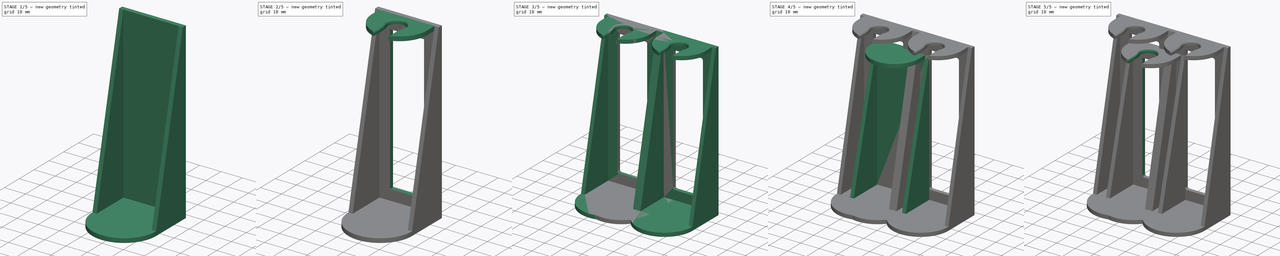
[diagram: build sequence overview — one tinted view per stage of 5, left to right]
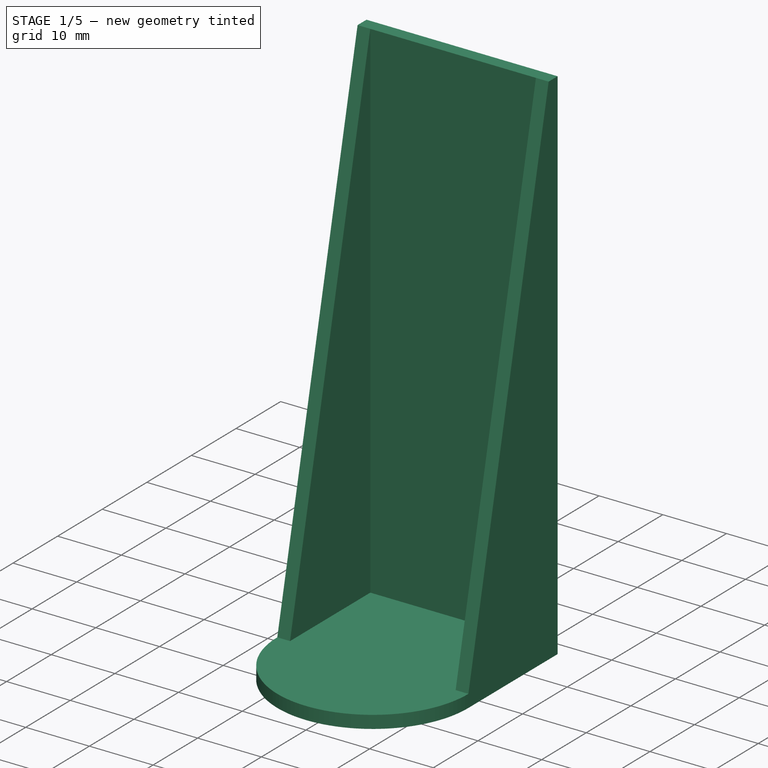
[diagram: stage 1 of 5 — iso view after this stage's code; geometry added in this stage tinted green]
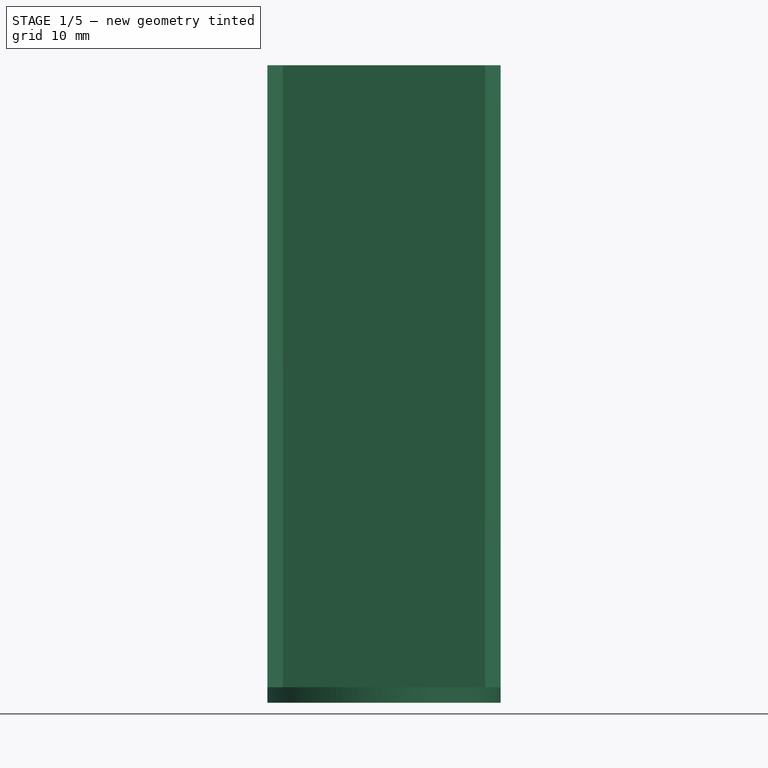
[diagram: stage 1 of 5 — front view after this stage's code; geometry added in this stage tinted green]
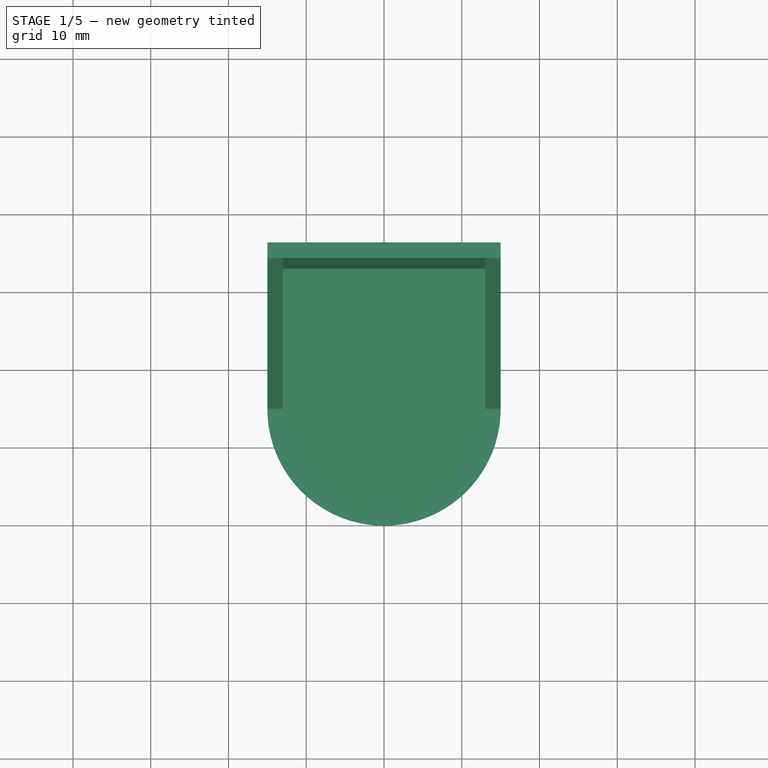
[diagram: stage 1 of 5 — top view after this stage's code; geometry added in this stage tinted green]
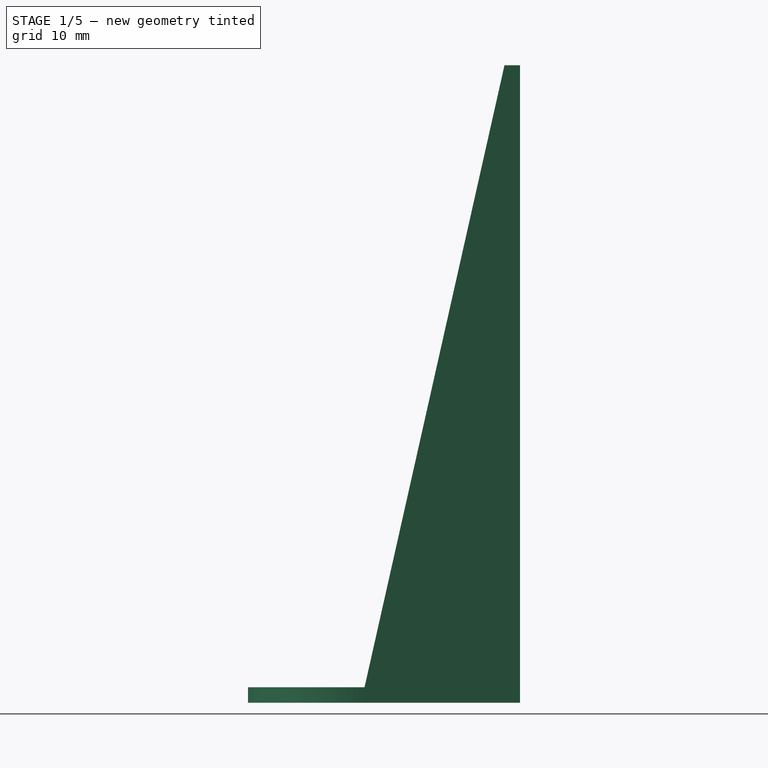
[diagram: stage 1 of 5 — right view after this stage's code; geometry added in this stage tinted green]
FCSTD DOCUMENT  (FreeCAD 0.19R22756 (Git))
Label: toothbrush-head-holder
License: All rights reserved
LicenseURL: http://en.wikipedia.org/wiki/All_rights_reserved
objects: Sketcher::SketchObject×12, PartDesign::Pad×8, PartDesign::Pocket×4, PartDesign::Fillet×4, PartDesign::Mirrored×2, PartDesign::Body×2, Part::FeaturePython×1
note: 48 computed .brp shape members not serialized (recipe doc carries the construction recipe); baked Part::Feature solids carry a one-line shape summary decoded from their .brp

FEATURE [PartDesign::Body] Body  label="Sonicare-holder-single"
  Group = -> [Sketch,Pad,Sketch001,Pad001,Sketch002,Pad002,Mirrored,Sketch003,Pad003,Sketch004,Pocket,Sketch005,Pocket001,Fillet,Fillet001]
  Origin = -> Origin
  Tip = -> Fillet001
FEATURE [Sketcher::SketchObject] Sketch006
  MapMode = 5
  Support = -> [XY_Plane001]
  expr: Constraints[6] = Constraints[5] / 2
  expr: Constraints[7] = Constraints[6]
  expr: Constraints[12] = Constraints[5] / 1.5
  sketch-geometry (4):
    g0: LineSegment StartX=-15 StartY=-5 StartZ=0 EndX=-15 EndY=15 EndZ=0
    g1: LineSegment StartX=-15 StartY=15 StartZ=0 EndX=15 EndY=15 EndZ=0
    g2: LineSegment StartX=15 StartY=15 StartZ=0 EndX=15 EndY=-5 EndZ=0
    g3: ArcOfCircle CenterX=-8e-16 CenterY=-5 CenterZ=0 NormalX=0 NormalY=0 NormalZ=1 AngleXU=0 Radius=15 StartAngle=3.14159 EndAngle=6.28319
  constraints (13):
    c: Vertical(g0)
    c: Coincident(g1,g0)
    c: Horizontal(g1)
    c: Coincident(g2,g1)
    c: Vertical(g2)
    c: Distance(g1) = 30
    c: Distance(g-1,g0) = 15
    c: Distance(g-1,g1) = 15
    c: Horizontal(g2,g0)
    c: Coincident(g3,g0)
    c: Coincident(g3,g2)
    c: Horizontal(g3,g2)
    c: Distance(g0,g0) = 20
FEATURE [PartDesign::Pad] Pad005
  Direction = (1,1,1)
  Length = 2
  Length2 = 100
  Profile = -> Sketch006
  Type = 0
FEATURE [Sketcher::SketchObject] Sketch007
  ExternalGeometry = -> [Pad005]
  MapMode = 5
  Placement = pos=(0,15,0) rot=(0,0.707107,0.707107;3.14159rad)
  Support = -> [Pad005]
  sketch-geometry (4):
    g0: LineSegment StartX=-15 StartY=2 StartZ=0 EndX=15 EndY=2 EndZ=0
    g1: LineSegment StartX=15 StartY=2 StartZ=0 EndX=15 EndY=82 EndZ=0
    g2: LineSegment StartX=15 StartY=82 StartZ=0 EndX=-15 EndY=82 EndZ=0
    g3: LineSegment StartX=-15 StartY=82 StartZ=0 EndX=-15 EndY=2 EndZ=0
  constraints (10):
    c: Coincident(g0,g1)
    c: Coincident(g1,g2)
    c: Coincident(g2,g3)
    c: Coincident(g3,g0)
    c: Horizontal(g2)
    c: Vertical(g1)
    c: Vertical(g3)
    c: Coincident(g0,g-3)
    c: Coincident(g-3,g0)
    c: Distance(g1) = 80
FEATURE [PartDesign::Pad] Pad006
  BaseFeature = -> Pad005
  Direction = (1,1,1)
  Length = 2
  Length2 = 100
  Profile = -> Sketch007
  Reversed = true
  Type = 0
FEATURE [Sketcher::SketchObject] Sketch008
  ExternalGeometry = -> [Pad006]
  MapMode = 5
  Placement = pos=(15,0,0) rot=(0.57735,0.57735,0.57735;2.0944rad)
  Support = -> [Pad006]
  sketch-geometry (3):
    g0: LineSegment StartX=13 StartY=82 StartZ=0 EndX=13 EndY=2 EndZ=0
    g1: LineSegment StartX=13 StartY=2 StartZ=0 EndX=-5 EndY=2 EndZ=0
    g2: LineSegment StartX=-5 StartY=2 StartZ=0 EndX=13 EndY=82 EndZ=0
  constraints (6):
    c: Coincident(g0,g-4)
    c: Coincident(g0,g-4)
    c: Coincident(g1,g0)
    c: Coincident(g1,g-3)
    c: Coincident(g2,g1)
    c: Coincident(g2,g0)
FEATURE [PartDesign::Pad] Pad007
  BaseFeature = -> Pad006
  Direction = (1,1,1)
  Length = 2
  Length2 = 100
  Profile = -> Sketch008
  Reversed = true
  Type = 0
FEATURE [PartDesign::Mirrored] Mirrored001
  BaseFeature = -> Pad007
  MirrorPlane = -> YZ_Plane001
  Originals = -> [Pad007]
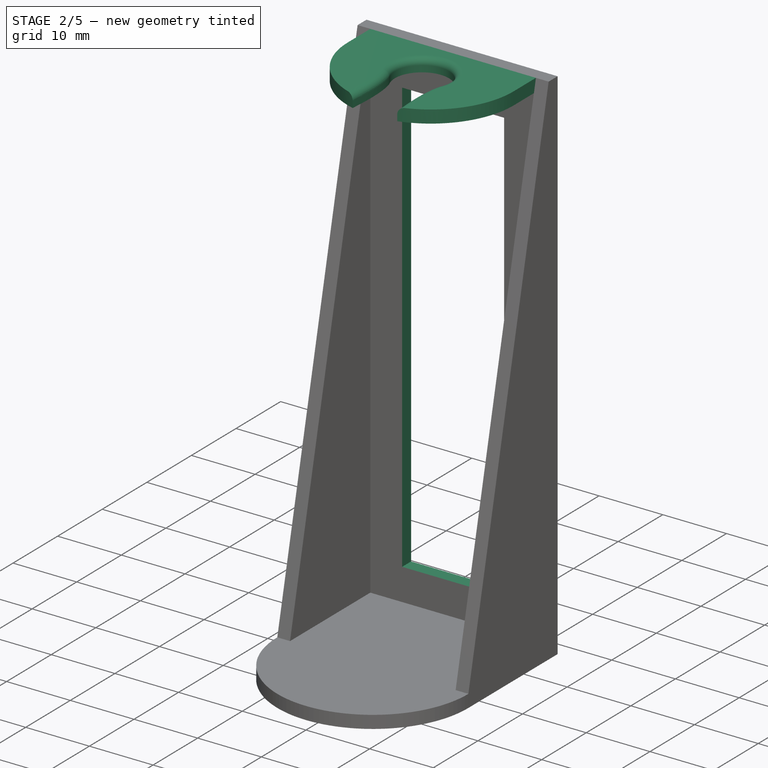
[diagram: stage 2 of 5 — iso view after this stage's code; geometry added in this stage tinted green]
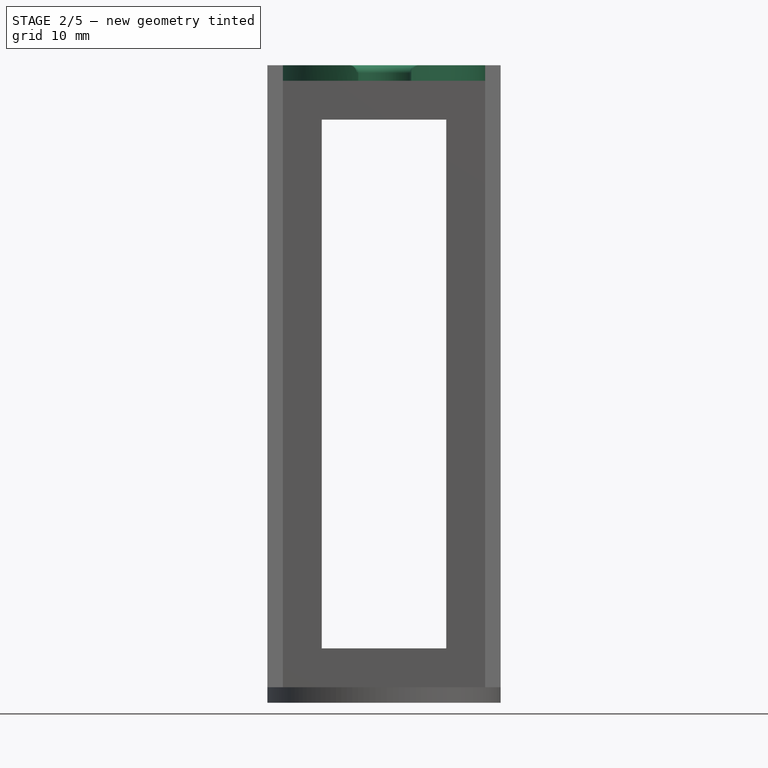
[diagram: stage 2 of 5 — front view after this stage's code; geometry added in this stage tinted green]
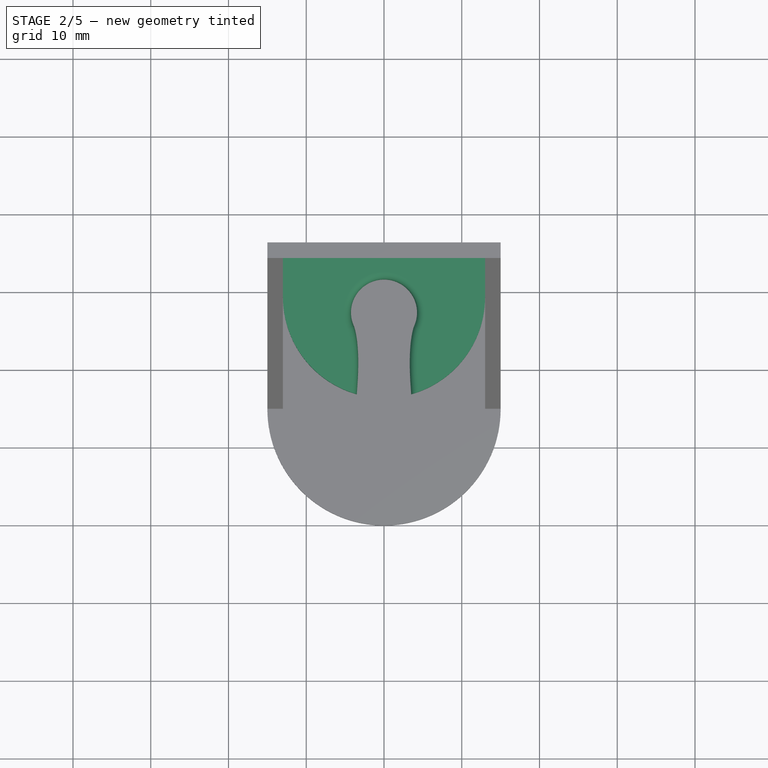
[diagram: stage 2 of 5 — top view after this stage's code; geometry added in this stage tinted green]
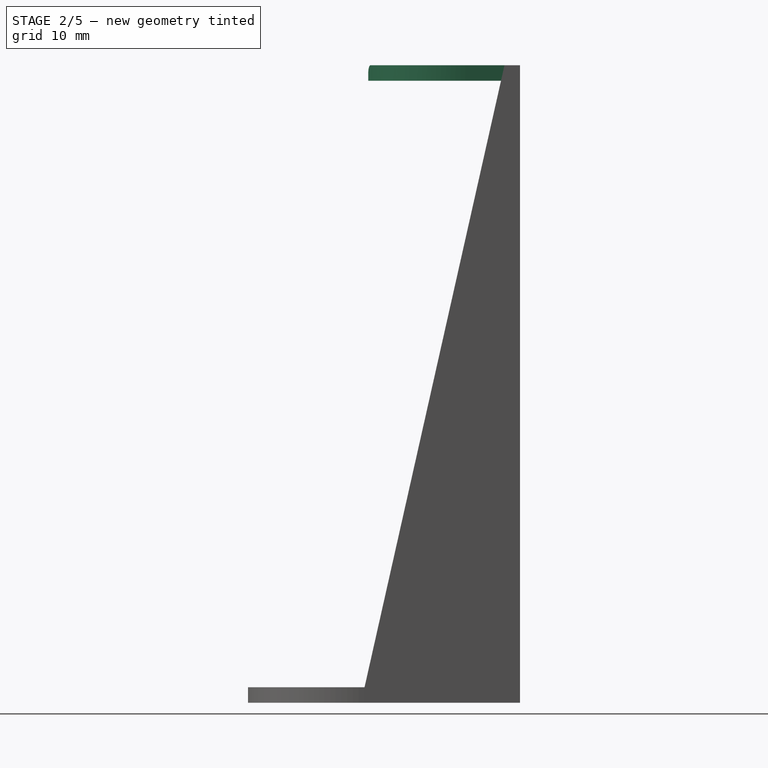
[diagram: stage 2 of 5 — right view after this stage's code; geometry added in this stage tinted green]
FEATURE [Sketcher::SketchObject] Sketch010
  ExternalGeometry = -> [Mirrored001]
  MapMode = 5
  Placement = pos=(0,1.82e-14,82) rot=(0,0,1;0rad)
  Support = -> [Mirrored001]
  sketch-geometry (4):
    g0: LineSegment StartX=-13 StartY=13 StartZ=0 EndX=13 EndY=13 EndZ=0
    g1: LineSegment StartX=-13 StartY=13 StartZ=0 EndX=-13 EndY=8 EndZ=0
    g2: LineSegment StartX=13 StartY=13 StartZ=0 EndX=13 EndY=8 EndZ=0
    g3: ArcOfCircle CenterX=-3.1e-15 CenterY=8 CenterZ=0 NormalX=0 NormalY=0 NormalZ=1 AngleXU=0 Radius=13 StartAngle=3.14159 EndAngle=6.28319
  constraints (10):
    c: Coincident(g0,g-3)
    c: Coincident(g0,g-4)
    c: Coincident(g1,g0)
    c: Coincident(g2,g0)
    c: Horizontal(g1,g2)
    c: Parallel(g1,g-3)
    c: Parallel(g2,g-4)
    c: Distance(g1) = 5
    c: Coincident(g3,g2)
    c: Tangent(g3,g1) = -1.5708
FEATURE [PartDesign::Pad] Pad004
  BaseFeature = -> Mirrored001
  Direction = (1,1,1)
  Length = 2
  Length2 = 100
  Profile = -> Sketch010
  Reversed = true
  Type = 0
FEATURE [Sketcher::SketchObject] Sketch009
  ExternalGeometry = -> [Pad004]
  MapMode = 5
  Placement = pos=(0,0,82) rot=(0,0,1;0rad)
  Support = -> [Pad004]
  expr: Constraints[22] = Constraints[15]
  sketch-geometry (10):
    g0: LineSegment [constr] StartX=0 StartY=0 StartZ=0 EndX=0 EndY=6 EndZ=0
    g1: ArcOfCircle CenterX=0 CenterY=6 CenterZ=0 NormalX=0 NormalY=0 NormalZ=1 AngleXU=0 Radius=4.25 StartAngle=5.83648 EndAngle=9.87149
    g2: Circle [constr] CenterX=-3.83296 CenterY=4.164 CenterZ=0 NormalX=0 NormalY=0 NormalZ=1 AngleXU=0 Radius=0.2
    g3: Circle [constr] CenterX=-3 CenterY=1.5 CenterZ=0 NormalX=0 NormalY=0 NormalZ=1 AngleXU=0 Radius=0.2
    g4: Circle [constr] CenterX=-3.5 CenterY=-4.51998 CenterZ=0 NormalX=0 NormalY=0 NormalZ=1 AngleXU=0 Radius=0.2
    g5: BSplineCurve PolesCount=3 KnotsCount=2 Degree=2 IsPeriodic=0
    g6: GeomPoint [constr] X=-3.83296 Y=4.164 Z=0
    g7: GeomPoint [constr] X=-3.5 Y=-4.51998 Z=0
    g8: BSplineCurve PolesCount=3 KnotsCount=2 Degree=2 IsPeriodic=0
    g9: ArcOfCircle CenterX=2.1e-15 CenterY=8 CenterZ=0 NormalX=0 NormalY=0 NormalZ=1 AngleXU=0 Radius=13 StartAngle=4.43979 EndAngle=4.98498
  constraints (25):
    c: Coincident(g0,g-1)
    c: PointOnObject(g0,g-2)
    c: Distance(g0) = 6
    c: Coincident(g1,g0)
    c: Horizontal(g1,g1)
    c: Radius(g1) = 4.25
    c: Coincident(g5,g1)
    c: Radius(g2) = 0.2
    c: Equal(g2,g3)
    c: Equal(g2,g4)
    c: InternalAlignment(g2,g5)
    c: InternalAlignment(g3,g5)
    c: InternalAlignment(g4,g5)
    c: InternalAlignment(g6,g5)
    c: InternalAlignment(g7,g5)
    c: Distance(g5,g0) = 3.5
    c: DistanceY(g-1,g1) = 4.164
    c: Distance(g3,g0) = 3
    c: DistanceY(g-1,g3) = 1.5
    c: PointOnObject(g5,g-3)
    c: Coincident(g9,g5)
    c: Coincident(g9,g8)
    c: DistanceX(g-2,g8) = 3.5
    c: Horizontal(g5,g8)
    c: Tangent(g9,g-3)
FEATURE [PartDesign::Pocket] Pocket003
  BaseFeature = -> Pad004
  Length = 0
  Length2 = 100
  Profile = -> Sketch009
  Type = 3
  UpToFace = -> Pad004 [Face21]
FEATURE [Sketcher::SketchObject] Sketch011
  ExternalGeometry = -> [Pocket003]
  MapMode = 5
  Placement = pos=(0,13,-2.9e-15) rot=(1,0,0;1.5708rad)
  Support = -> [Pocket003]
  expr: Constraints[9] = Constraints[8]
  expr: Constraints[10] = Constraints[8]
  expr: Constraints[11] = Constraints[8]
  sketch-geometry (4):
    g0: LineSegment StartX=-8 StartY=7 StartZ=0 EndX=8 EndY=7 EndZ=0
    g1: LineSegment StartX=8 StartY=7 StartZ=0 EndX=8 EndY=75 EndZ=0
    g2: LineSegment StartX=8 StartY=75 StartZ=0 EndX=-8 EndY=75 EndZ=0
    g3: LineSegment StartX=-8 StartY=75 StartZ=0 EndX=-8 EndY=7 EndZ=0
  constraints (12):
    c: Coincident(g0,g1)
    c: Coincident(g1,g2)
    c: Coincident(g2,g3)
    c: Coincident(g3,g0)
    c: Horizontal(g0)
    c: Horizontal(g2)
    c: Vertical(g1)
    c: Vertical(g3)
    c: Distance(g-3,g0) = 5
    c: Distance(g-8,g3) = 5
    c: Distance(g-6,g2) = 5
    c: Distance(g-6,g1) = 5
FEATURE [PartDesign::Pocket] Pocket002
  BaseFeature = -> Pocket003
  Length = 0
  Length2 = 100
  Profile = -> Sketch011
  Type = 3
  UpToFace = -> Pocket003 [Face9]
FEATURE [PartDesign::Fillet] Fillet003
  Base = -> Pocket002 [Edge57,Edge58,Edge59]
  BaseFeature = -> Pocket002
  Radius = 1
  SupportTransform = false
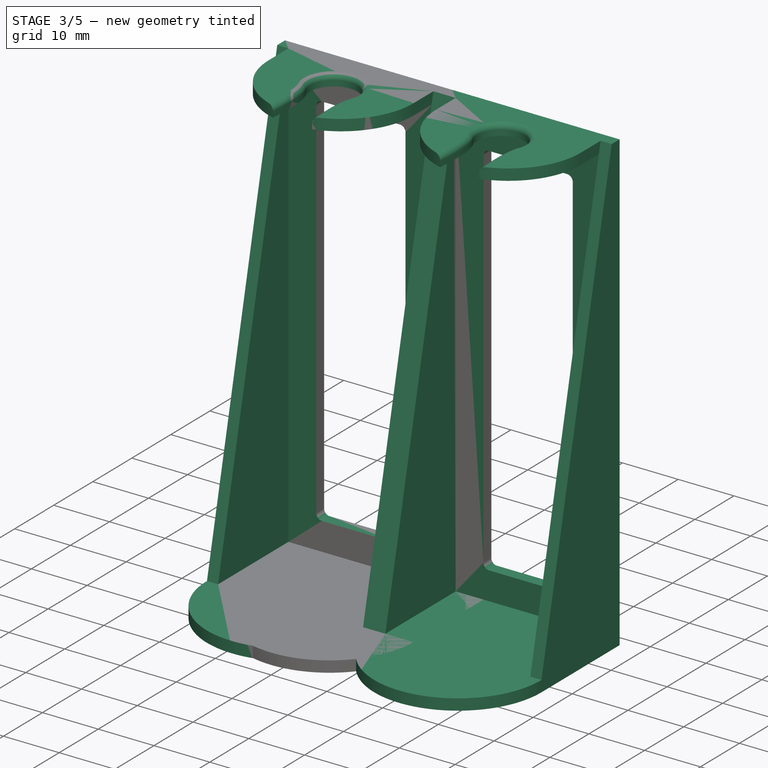
[diagram: stage 3 of 5 — iso view after this stage's code; geometry added in this stage tinted green]
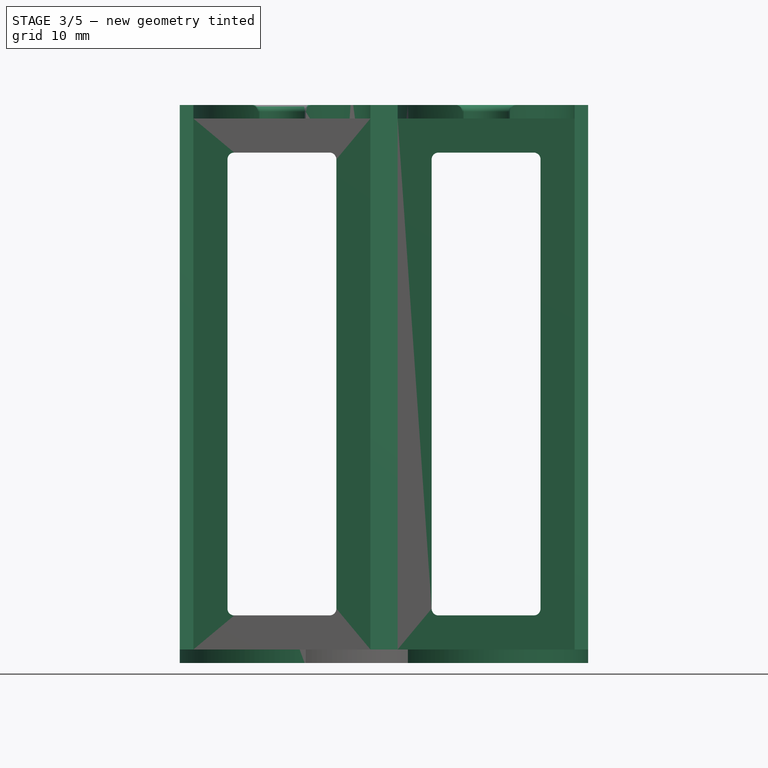
[diagram: stage 3 of 5 — front view after this stage's code; geometry added in this stage tinted green]
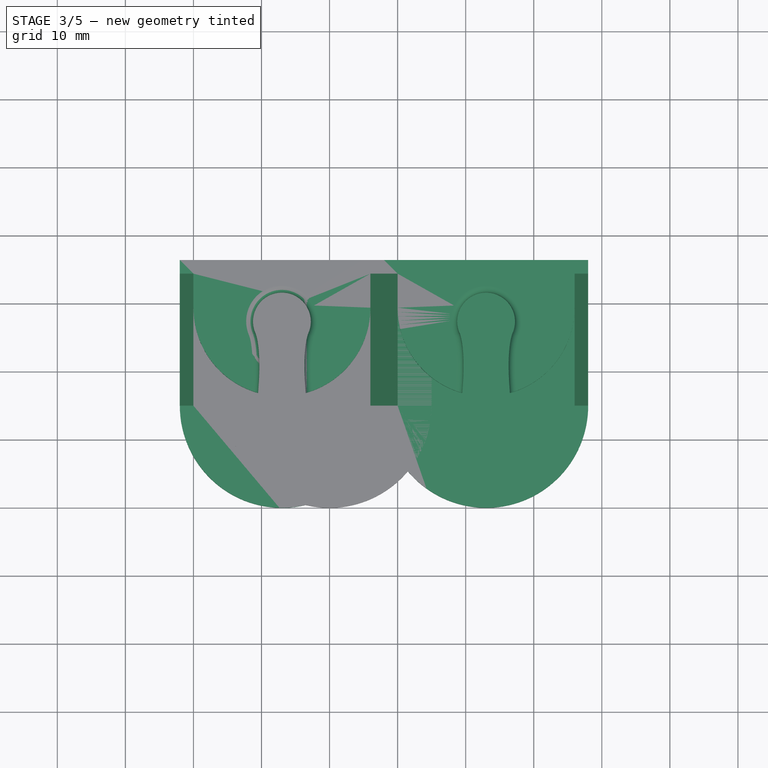
[diagram: stage 3 of 5 — top view after this stage's code; geometry added in this stage tinted green]
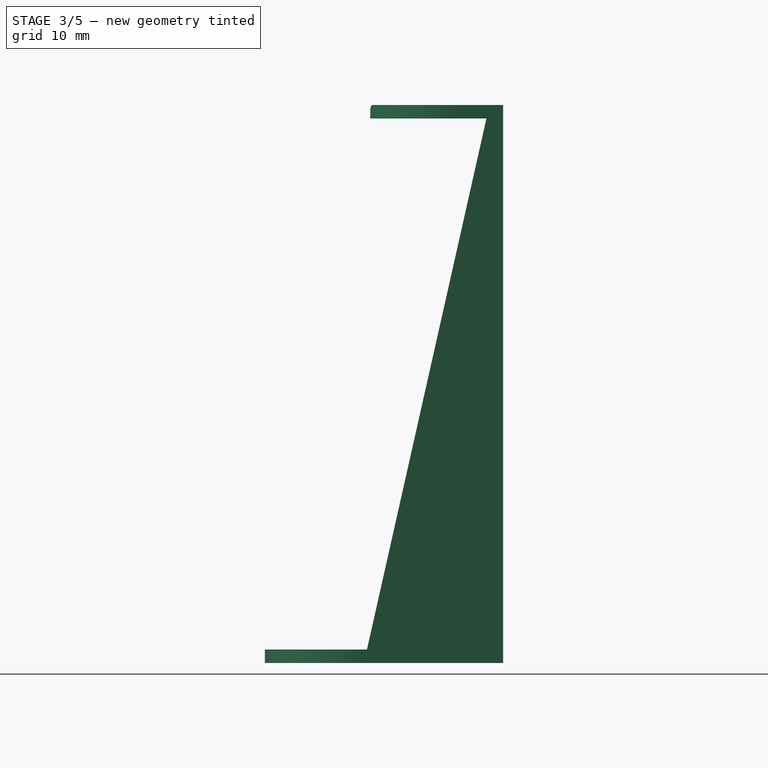
[diagram: stage 3 of 5 — right view after this stage's code; geometry added in this stage tinted green]
FEATURE [Sketcher::SketchObject] Sketch
  MapMode = 5
  Support = -> [XY_Plane]
  expr: Constraints[12] = Constraints[5] / 1.5
  expr: Constraints[7] = Constraints[6]
  expr: Constraints[6] = Constraints[5] / 2
  sketch-geometry (4):
    g0: LineSegment StartX=-15 StartY=-5 StartZ=0 EndX=-15 EndY=15 EndZ=0
    g1: LineSegment StartX=-15 StartY=15 StartZ=0 EndX=15 EndY=15 EndZ=0
    g2: LineSegment StartX=15 StartY=15 StartZ=0 EndX=15 EndY=-5 EndZ=0
    g3: ArcOfCircle CenterX=-8e-16 CenterY=-5 CenterZ=0 NormalX=0 NormalY=0 NormalZ=1 AngleXU=0 Radius=15 StartAngle=3.14159 EndAngle=6.28319
  constraints (13):
    c: Vertical(g0)
    c: Coincident(g1,g0)
    c: Horizontal(g1)
    c: Coincident(g2,g1)
    c: Vertical(g2)
    c: Distance(g1) = 30
    c: Distance(g-1,g0) = 15
    c: Distance(g-1,g1) = 15
    c: Horizontal(g2,g0)
    c: Coincident(g3,g0)
    c: Coincident(g3,g2)
    c: Horizontal(g3,g2)
    c: Distance(g0,g0) = 20
FEATURE [PartDesign::Pad] Pad
  Direction = (1,1,1)
  Length = 2
  Length2 = 100
  Profile = -> Sketch
  Type = 0
FEATURE [PartDesign::Fillet] Fillet002
  Base = -> Fillet003 [Edge76,Edge75,Edge78,Edge77]
  BaseFeature = -> Fillet003
  Radius = 1
  SupportTransform = false
FEATURE [PartDesign::Body] Body001  label="Sonicare-holder-duo"
  Group = -> [Sketch006,Pad005,Sketch007,Pad006,Sketch008,Pad007,Mirrored001,Sketch010,Pad004,Sketch009,Pocket003,Sketch011,Pocket002,Fillet003,Fillet002]
  Origin = -> Origin001
  Placement = pos=(-7,0,0) rot=(0,0,1;0rad)
  Tip = -> Fillet002
FEATURE [Part::FeaturePython] Array  label="Sonicare-holder-duo001"  # Draft array (typed FeaturePython)
  Angle = 360
  ArrayType = 0
  Axis = (0,0,1)
  Base = -> Body001
  Center = (0,0,0)
  Count = 2
  ExpandArray = false
  Fuse = false
  IntervalAxis = (0,0,0)
  IntervalX = (30,0,0)
  IntervalY = (0,100,0)
  IntervalZ = (0,0,100)
  NumberCircles = 3
  NumberPolar = 5
  NumberX = 2
  NumberY = 1
  NumberZ = 1
  PlacementList = 2 placements: [(-7,0,0),(23,0,0)]
  RadialDistance = 50
  ScaleList = (2) [(1,1,1),(1,1,1)]
  Symmetry = 1
  TangentialDistance = 25
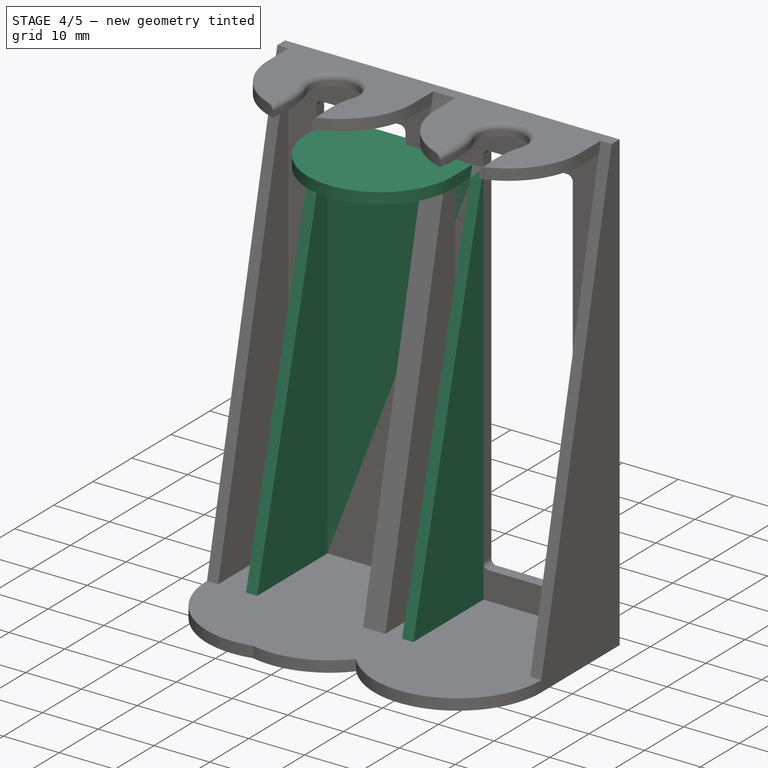
[diagram: stage 4 of 5 — iso view after this stage's code; geometry added in this stage tinted green]
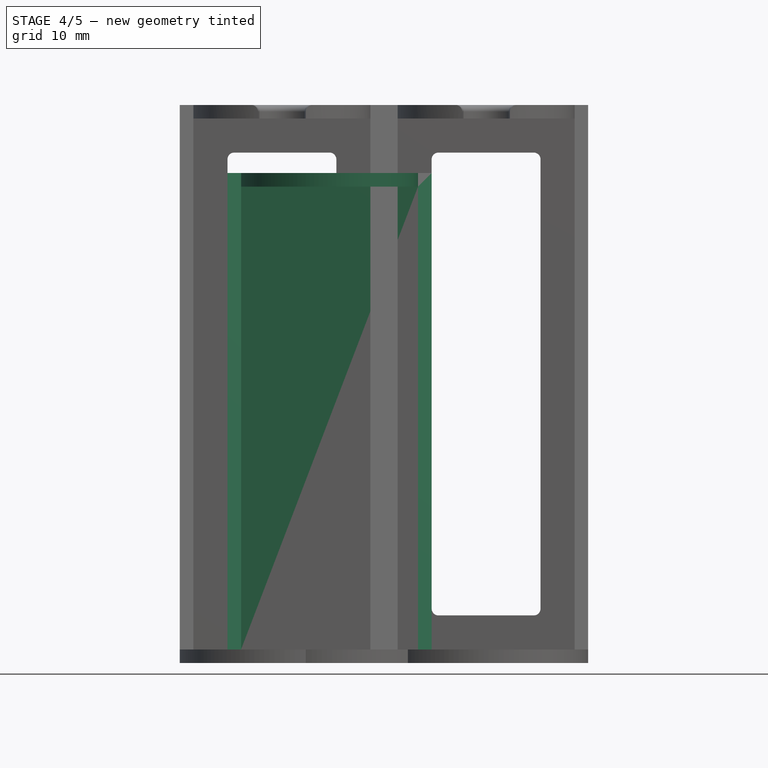
[diagram: stage 4 of 5 — front view after this stage's code; geometry added in this stage tinted green]
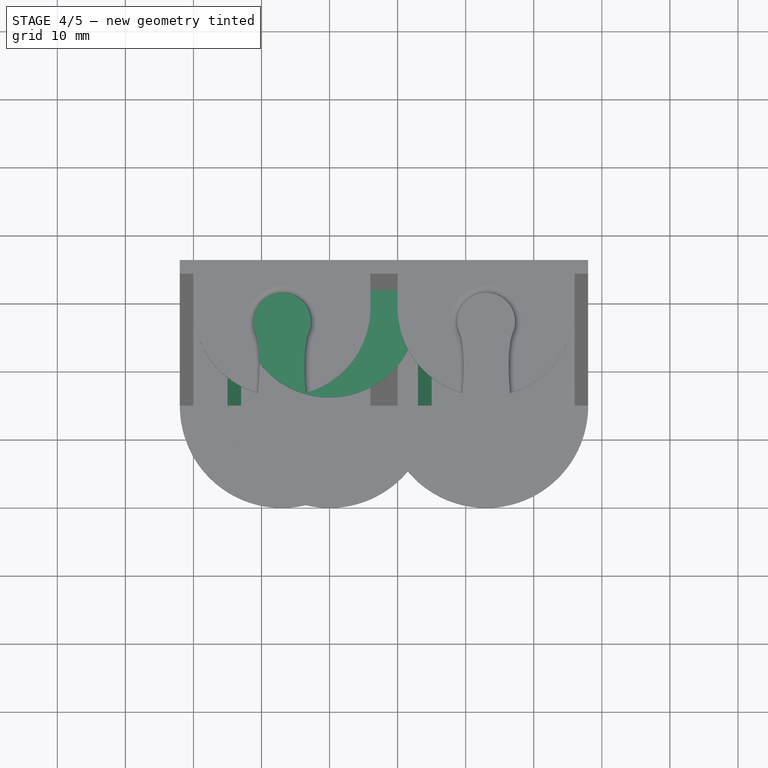
[diagram: stage 4 of 5 — top view after this stage's code; geometry added in this stage tinted green]
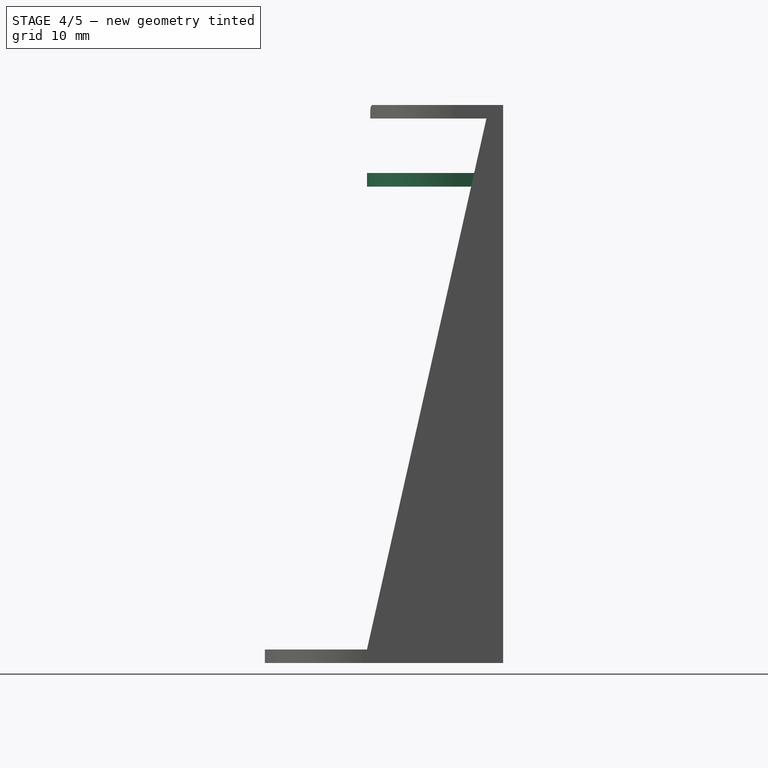
[diagram: stage 4 of 5 — right view after this stage's code; geometry added in this stage tinted green]
FEATURE [Sketcher::SketchObject] Sketch001
  ExternalGeometry = -> [Pad]
  MapMode = 5
  Placement = pos=(0,15,0) rot=(0,0.707107,0.707107;3.14159rad)
  Support = -> [Pad]
  sketch-geometry (4):
    g0: LineSegment StartX=-15 StartY=2 StartZ=0 EndX=15 EndY=2 EndZ=0
    g1: LineSegment StartX=15 StartY=2 StartZ=0 EndX=15 EndY=72 EndZ=0
    g2: LineSegment StartX=15 StartY=72 StartZ=0 EndX=-15 EndY=72 EndZ=0
    g3: LineSegment StartX=-15 StartY=72 StartZ=0 EndX=-15 EndY=2 EndZ=0
  constraints (10):
    c: Coincident(g0,g1)
    c: Coincident(g1,g2)
    c: Coincident(g2,g3)
    c: Coincident(g3,g0)
    c: Horizontal(g2)
    c: Vertical(g1)
    c: Vertical(g3)
    c: Coincident(g0,g-3)
    c: Coincident(g-3,g0)
    c: Distance(g1) = 70
FEATURE [PartDesign::Pad] Pad001
  BaseFeature = -> Pad
  Direction = (1,1,1)
  Length = 2
  Length2 = 100
  Profile = -> Sketch001
  Reversed = true
  Type = 0
FEATURE [Sketcher::SketchObject] Sketch002
  ExternalGeometry = -> [Pad001]
  MapMode = 5
  Placement = pos=(15,0,0) rot=(0.57735,0.57735,0.57735;2.0944rad)
  Support = -> [Pad001]
  sketch-geometry (3):
    g0: LineSegment StartX=13 StartY=72 StartZ=0 EndX=13 EndY=2 EndZ=0
    g1: LineSegment StartX=13 StartY=2 StartZ=0 EndX=-5 EndY=2 EndZ=0
    g2: LineSegment StartX=-5 StartY=2 StartZ=0 EndX=13 EndY=72 EndZ=0
  constraints (6):
    c: Coincident(g0,g-4)
    c: Coincident(g0,g-4)
    c: Coincident(g1,g0)
    c: Coincident(g1,g-3)
    c: Coincident(g2,g1)
    c: Coincident(g2,g0)
FEATURE [PartDesign::Pad] Pad002
  BaseFeature = -> Pad001
  Direction = (1,1,1)
  Length = 2
  Length2 = 100
  Profile = -> Sketch002
  Reversed = true
  Type = 0
FEATURE [PartDesign::Mirrored] Mirrored
  BaseFeature = -> Pad002
  MirrorPlane = -> YZ_Plane
  Originals = -> [Pad002]
FEATURE [Sketcher::SketchObject] Sketch003
  ExternalGeometry = -> [Mirrored]
  MapMode = 5
  Placement = pos=(0,1.58e-14,72) rot=(0,0,1;0rad)
  Support = -> [Mirrored]
  sketch-geometry (4):
    g0: LineSegment StartX=-13 StartY=13 StartZ=0 EndX=13 EndY=13 EndZ=0
    g1: LineSegment StartX=-13 StartY=13 StartZ=0 EndX=-13 EndY=8 EndZ=0
    g2: LineSegment StartX=13 StartY=13 StartZ=0 EndX=13 EndY=8 EndZ=0
    g3: ArcOfCircle CenterX=-3.1e-15 CenterY=8 CenterZ=0 NormalX=0 NormalY=0 NormalZ=1 AngleXU=0 Radius=13 StartAngle=3.14159 EndAngle=6.28319
  constraints (10):
    c: Coincident(g0,g-3)
    c: Coincident(g0,g-4)
    c: Coincident(g1,g0)
    c: Coincident(g2,g0)
    c: Horizontal(g1,g2)
    c: Parallel(g1,g-3)
    c: Parallel(g2,g-4)
    c: Distance(g1) = 5
    c: Coincident(g3,g2)
    c: Tangent(g3,g1) = -1.5708
FEATURE [PartDesign::Pad] Pad003
  BaseFeature = -> Mirrored
  Direction = (1,1,1)
  Length = 2
  Length2 = 100
  Profile = -> Sketch003
  Reversed = true
  Type = 0
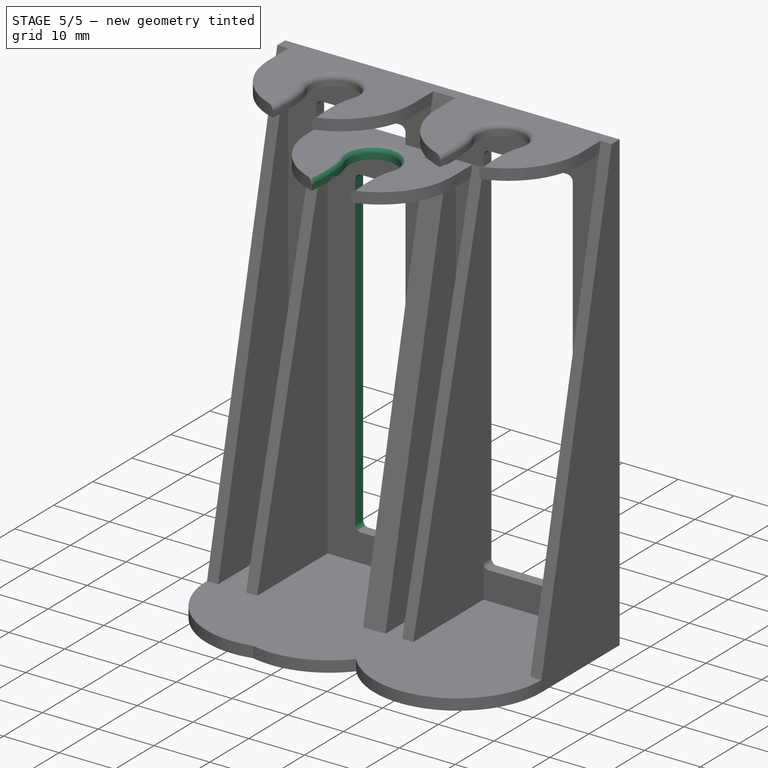
[diagram: stage 5 of 5 — iso view after this stage's code; geometry added in this stage tinted green]
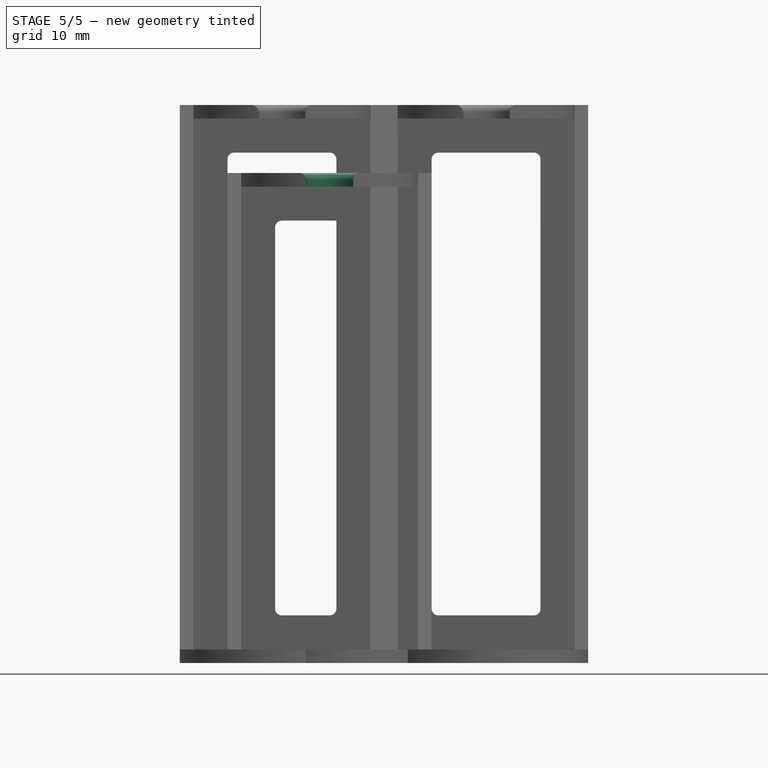
[diagram: stage 5 of 5 — front view after this stage's code; geometry added in this stage tinted green]
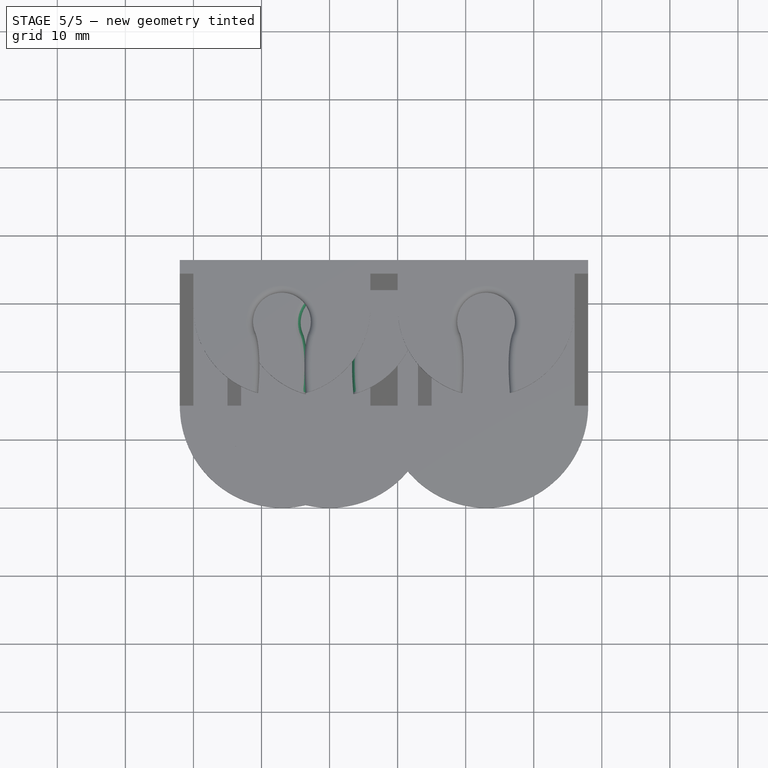
[diagram: stage 5 of 5 — top view after this stage's code; geometry added in this stage tinted green]
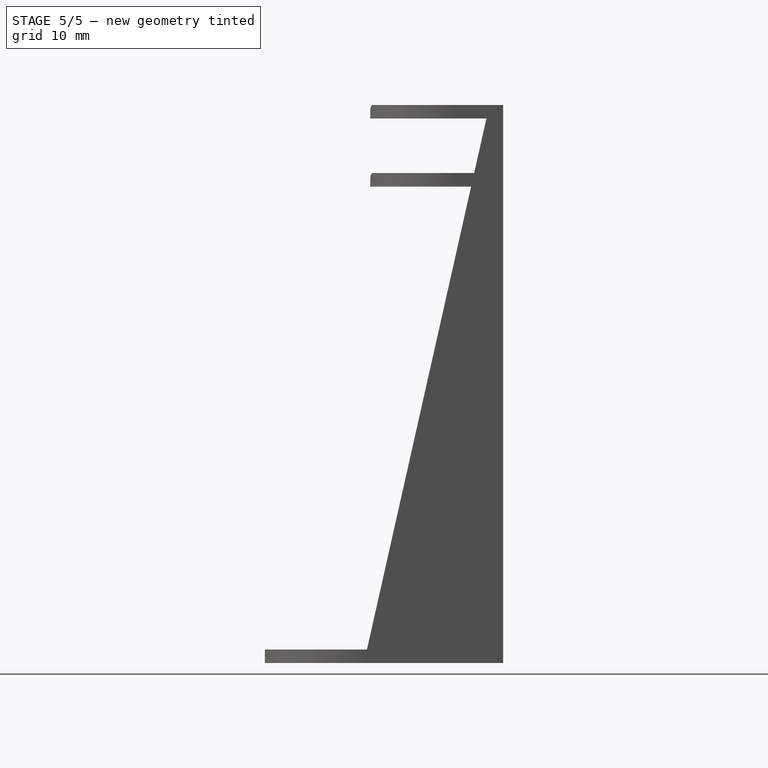
[diagram: stage 5 of 5 — right view after this stage's code; geometry added in this stage tinted green]
FEATURE [Sketcher::SketchObject] Sketch004
  ExternalGeometry = -> [Pad003]
  MapMode = 5
  Placement = pos=(0,0,72) rot=(0,0,1;0rad)
  Support = -> [Pad003]
  expr: Constraints[22] = Constraints[15]
  sketch-geometry (10):
    g0: LineSegment [constr] StartX=0 StartY=0 StartZ=0 EndX=0 EndY=6 EndZ=0
    g1: ArcOfCircle CenterX=0 CenterY=6 CenterZ=0 NormalX=0 NormalY=0 NormalZ=1 AngleXU=0 Radius=4.25 StartAngle=5.83648 EndAngle=9.87149
    g2: Circle [constr] CenterX=-3.83296 CenterY=4.164 CenterZ=0 NormalX=0 NormalY=0 NormalZ=1 AngleXU=0 Radius=0.2
    g3: Circle [constr] CenterX=-3 CenterY=1.5 CenterZ=0 NormalX=0 NormalY=0 NormalZ=1 AngleXU=0 Radius=0.2
    g4: Circle [constr] CenterX=-3.5 CenterY=-4.51998 CenterZ=0 NormalX=0 NormalY=0 NormalZ=1 AngleXU=0 Radius=0.2
    g5: BSplineCurve PolesCount=3 KnotsCount=2 Degree=2 IsPeriodic=0
    g6: GeomPoint [constr] X=-3.83296 Y=4.164 Z=0
    g7: GeomPoint [constr] X=-3.5 Y=-4.51998 Z=0
    g8: BSplineCurve PolesCount=3 KnotsCount=2 Degree=2 IsPeriodic=0
    g9: ArcOfCircle CenterX=2.1e-15 CenterY=8 CenterZ=0 NormalX=0 NormalY=0 NormalZ=1 AngleXU=0 Radius=13 StartAngle=4.43979 EndAngle=4.98498
  constraints (25):
    c: Coincident(g0,g-1)
    c: PointOnObject(g0,g-2)
    c: Distance(g0) = 6
    c: Coincident(g1,g0)
    c: Horizontal(g1,g1)
    c: Radius(g1) = 4.25
    c: Coincident(g5,g1)
    c: Radius(g2) = 0.2
    c: Equal(g2,g3)
    c: Equal(g2,g4)
    c: InternalAlignment(g2,g5)
    c: InternalAlignment(g3,g5)
    c: InternalAlignment(g4,g5)
    c: InternalAlignment(g6,g5)
    c: InternalAlignment(g7,g5)
    c: Distance(g5,g0) = 3.5
    c: DistanceY(g-1,g1) = 4.164
    c: Distance(g3,g0) = 3
    c: DistanceY(g-1,g3) = 1.5
    c: PointOnObject(g5,g-3)
    c: Coincident(g9,g5)
    c: Coincident(g9,g8)
    c: DistanceX(g-2,g8) = 3.5
    c: Horizontal(g5,g8)
    c: Tangent(g9,g-3)
FEATURE [PartDesign::Pocket] Pocket
  BaseFeature = -> Pad003
  Length = 0
  Length2 = 100
  Profile = -> Sketch004
  Type = 3
  UpToFace = -> Pad003 [Face21]
FEATURE [Sketcher::SketchObject] Sketch005
  ExternalGeometry = -> [Pocket]
  MapMode = 5
  Placement = pos=(0,13,-3e-15) rot=(1,0,0;1.5708rad)
  Support = -> [Pocket]
  expr: Constraints[11] = Constraints[8]
  expr: Constraints[10] = Constraints[8]
  expr: Constraints[9] = Constraints[8]
  sketch-geometry (4):
    g0: LineSegment StartX=-8 StartY=7 StartZ=0 EndX=8 EndY=7 EndZ=0
    g1: LineSegment StartX=8 StartY=7 StartZ=0 EndX=8 EndY=65 EndZ=0
    g2: LineSegment StartX=8 StartY=65 StartZ=0 EndX=-8 EndY=65 EndZ=0
    g3: LineSegment StartX=-8 StartY=65 StartZ=0 EndX=-8 EndY=7 EndZ=0
  constraints (12):
    c: Coincident(g0,g1)
    c: Coincident(g1,g2)
    c: Coincident(g2,g3)
    c: Coincident(g3,g0)
    c: Horizontal(g0)
    c: Horizontal(g2)
    c: Vertical(g1)
    c: Vertical(g3)
    c: Distance(g-3,g0) = 5
    c: Distance(g-8,g3) = 5
    c: Distance(g-6,g2) = 5
    c: Distance(g-6,g1) = 5
FEATURE [PartDesign::Pocket] Pocket001
  BaseFeature = -> Pocket
  Length = 0
  Length2 = 100
  Profile = -> Sketch005
  Type = 3
  UpToFace = -> Pocket [Face9]
FEATURE [PartDesign::Fillet] Fillet
  Base = -> Pocket001 [Edge57,Edge58,Edge59]
  BaseFeature = -> Pocket001
  Radius = 1
  SupportTransform = false
FEATURE [PartDesign::Fillet] Fillet001
  Base = -> Fillet [Edge76,Edge75,Edge78,Edge77]
  BaseFeature = -> Fillet
  Radius = 1
  SupportTransform = false
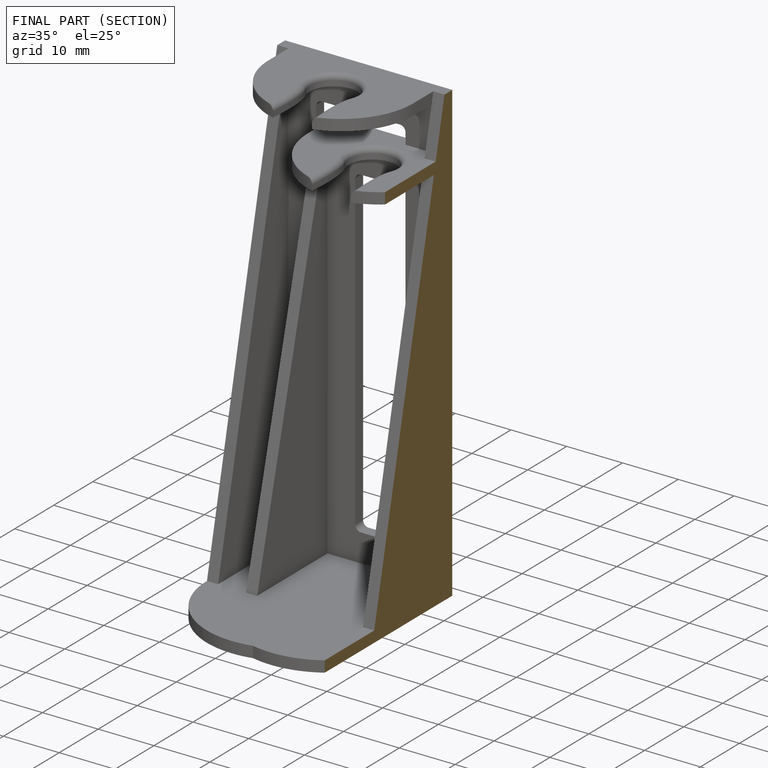
[diagram: finished part — half-section view (interior)]
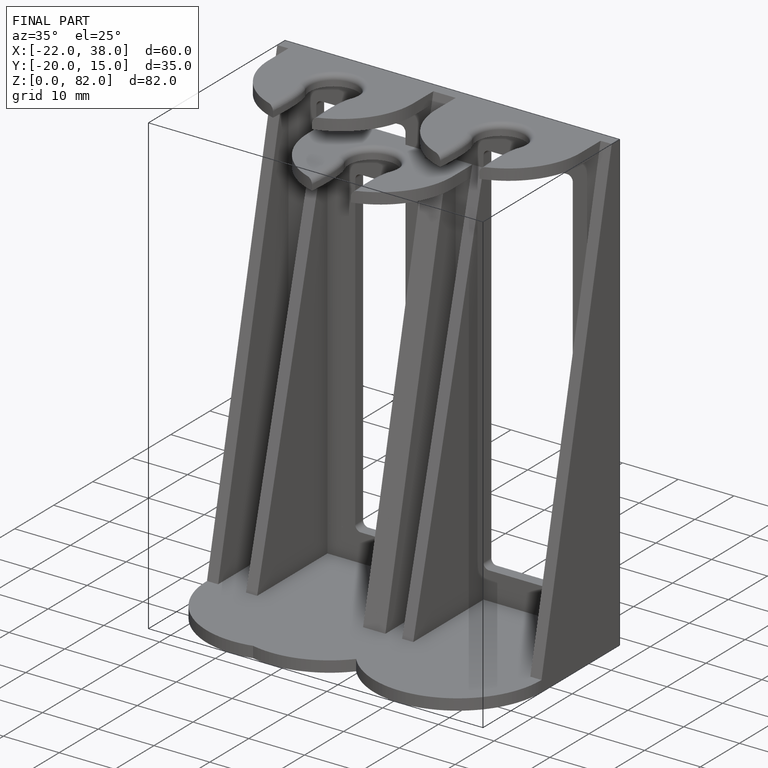
[diagram: finished part — iso view with bounding-box wireframe]
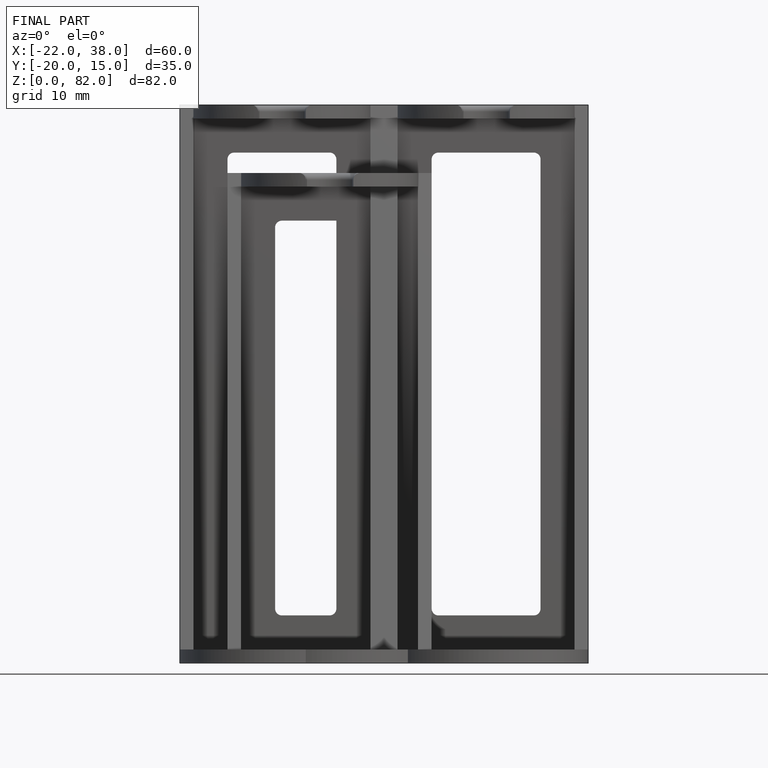
[diagram: finished part — front view with bounding-box wireframe]
